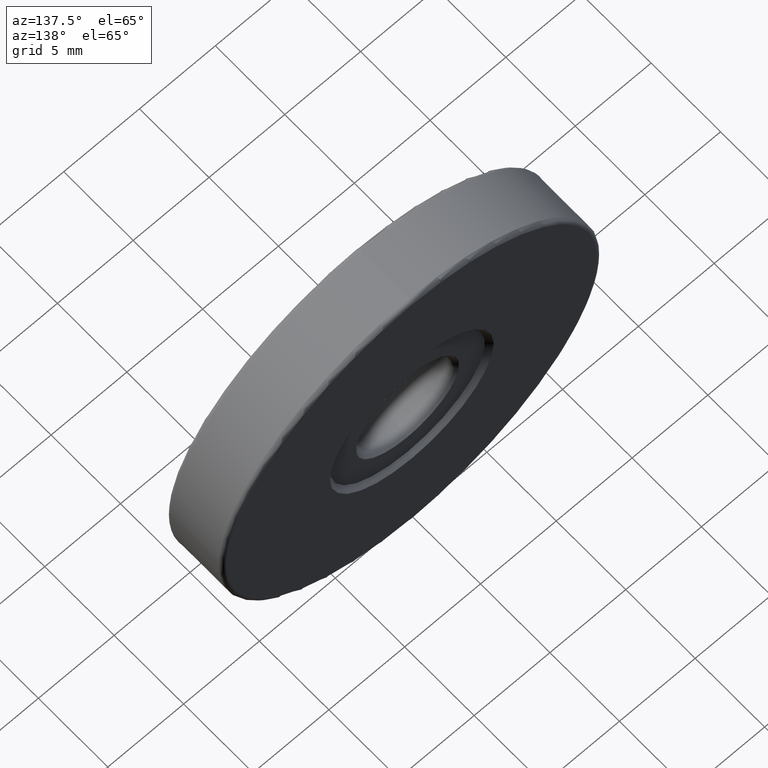
[diagram: clean part render]
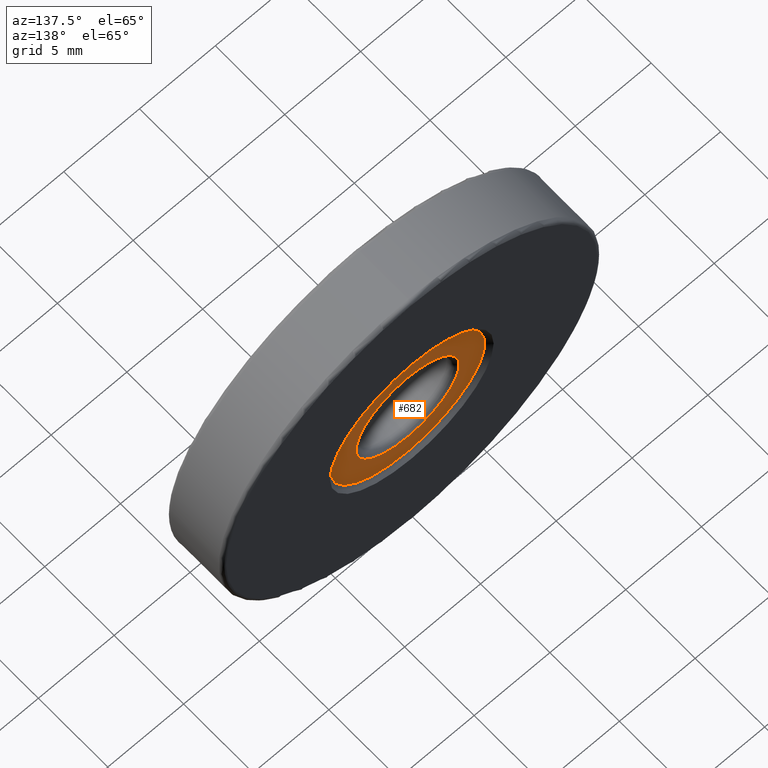
[diagram: same view with one face highlighted and labeled with its STEP entity id]
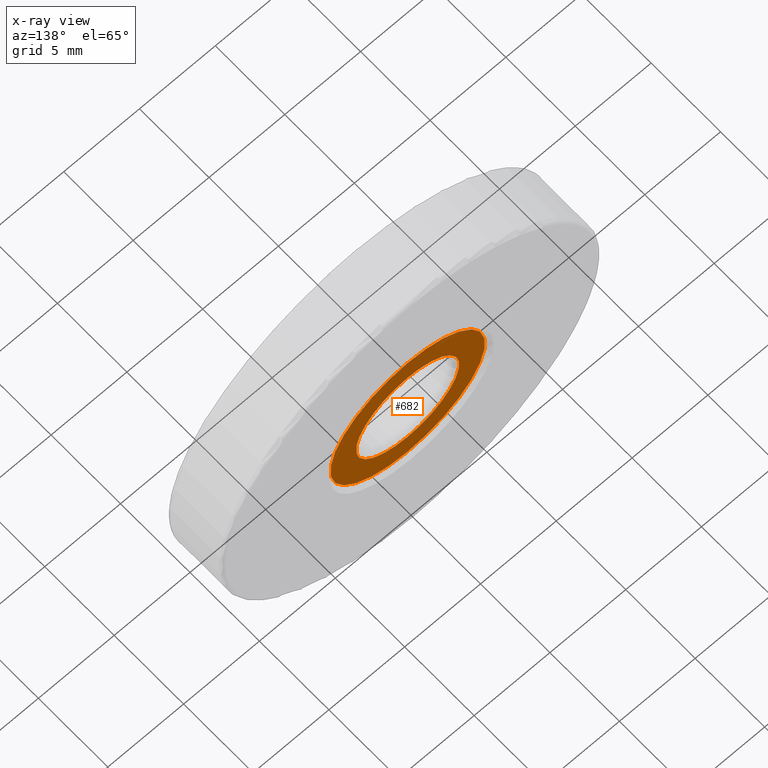
[diagram: x-ray of the same camera — body ghosted, the highlighted face saturated]
A machine part, auxiliary view. The second image highlights one B-rep face of the part: STEP entity #682.
The next image is the same camera in x-ray: the body ghosted, the highlighted face saturated — about 0% of this face is hidden behind the body in this view.
In plain terms, the highlighted planar face has unit normal (0, 1, 0).
Its self-contained STEP definition (entity closure, byte-faithful):
#2 = CIRCLE ( 'NONE', #41, 5.100000000000000533 ) ;
#36 = ORIENTED_EDGE ( 'NONE', *, *, #144, .T. ) ;
#41 = AXIS2_PLACEMENT_3D ( 'NONE', #203, #251, #313 ) ;
#55 = DIRECTION ( 'NONE',  ( 0.0000000000000000000, 0.0000000000000000000, 1.000000000000000000 ) ) ;
#58 = CIRCLE ( 'NONE', #329, 3.399999999999996803 ) ;
#59 = PLANE ( 'NONE',  #496 ) ;
#63 = FACE_OUTER_BOUND ( 'NONE', #436, .T. ) ;
#73 = CIRCLE ( 'NONE', #495, 3.399999999999996803 ) ;
#104 = DIRECTION ( 'NONE',  ( 0.0000000000000000000, 0.0000000000000000000, 1.000000000000000000 ) ) ;
#118 = CARTESIAN_POINT ( 'NONE',  ( -4.682026255059963837, 0.1050240230017253085, 19.90000000000000213 ) ) ;
#144 = EDGE_CURVE ( 'NONE', #227, #250, #2, .T. ) ;
#167 = DIRECTION ( 'NONE',  ( 0.0000000000000000000, -0.0000000000000000000, 1.000000000000000000 ) ) ;
#190 = ORIENTED_EDGE ( 'NONE', *, *, #498, .T. ) ;
#203 = CARTESIAN_POINT ( 'NONE',  ( -4.682026255059964726, 0.1050240230017253085, 25.00000000000000000 ) ) ;
#204 = CARTESIAN_POINT ( 'NONE',  ( -4.682026255059964726, 0.1050240230017253085, 25.00000000000000000 ) ) ;
#227 = VERTEX_POINT ( 'NONE', #118 ) ;
#250 = VERTEX_POINT ( 'NONE', #355 ) ;
#251 = DIRECTION ( 'NONE',  ( 0.0000000000000000000, 1.000000000000000000, 0.0000000000000000000 ) ) ;
#268 = CARTESIAN_POINT ( 'NONE',  ( -4.682026255059964726, 0.1050240230017253085, 25.00000000000000000 ) ) ;
#313 = DIRECTION ( 'NONE',  ( 0.0000000000000000000, 0.0000000000000000000, 1.000000000000000000 ) ) ;
#321 = DIRECTION ( 'NONE',  ( -0.0000000000000000000, -1.000000000000000000, -0.0000000000000000000 ) ) ;
#329 = AXIS2_PLACEMENT_3D ( 'NONE', #204, #321, #104 ) ;
#355 = CARTESIAN_POINT ( 'NONE',  ( -4.682026255059964726, 0.1050240230017253085, 30.10000000000000142 ) ) ;
#364 = DIRECTION ( 'NONE',  ( 0.0000000000000000000, 0.0000000000000000000, 1.000000000000000000 ) ) ;
#380 = EDGE_CURVE ( 'NONE', #250, #227, #537, .T. ) ;
#436 = EDGE_LOOP ( 'NONE', ( #667, #36 ) ) ;
#446 = DIRECTION ( 'NONE',  ( 0.0000000000000000000, 1.000000000000000000, 0.0000000000000000000 ) ) ;
#462 = AXIS2_PLACEMENT_3D ( 'NONE', #514, #565, #55 ) ;
#474 = DIRECTION ( 'NONE',  ( -0.0000000000000000000, -1.000000000000000000, -0.0000000000000000000 ) ) ;
#495 = AXIS2_PLACEMENT_3D ( 'NONE', #644, #474, #364 ) ;
#496 = AXIS2_PLACEMENT_3D ( 'NONE', #268, #446, #167 ) ;
#498 = EDGE_CURVE ( 'NONE', #533, #592, #73, .T. ) ;
#514 = CARTESIAN_POINT ( 'NONE',  ( -4.682026255059964726, 0.1050240230017253085, 25.00000000000000000 ) ) ;
#533 = VERTEX_POINT ( 'NONE', #698 ) ;
#537 = CIRCLE ( 'NONE', #462, 5.100000000000000533 ) ;
#554 = FACE_BOUND ( 'NONE', #654, .T. ) ;
#565 = DIRECTION ( 'NONE',  ( 0.0000000000000000000, 1.000000000000000000, 0.0000000000000000000 ) ) ;
#592 = VERTEX_POINT ( 'NONE', #648 ) ;
#632 = EDGE_CURVE ( 'NONE', #592, #533, #58, .T. ) ;
#644 = CARTESIAN_POINT ( 'NONE',  ( -4.682026255059964726, 0.1050240230017253085, 25.00000000000000000 ) ) ;
#648 = CARTESIAN_POINT ( 'NONE',  ( -4.682026255059964726, 0.1050240230017253085, 21.60000000000000497 ) ) ;
#654 = EDGE_LOOP ( 'NONE', ( #190, #661 ) ) ;
#661 = ORIENTED_EDGE ( 'NONE', *, *, #632, .T. ) ;
#667 = ORIENTED_EDGE ( 'NONE', *, *, #380, .T. ) ;
#682 = ADVANCED_FACE ( 'NONE', ( #554, #63 ), #59, .T. ) ;
#698 = CARTESIAN_POINT ( 'NONE',  ( -4.682026255059964726, 0.1050240230017253085, 28.39999999999999858 ) ) ;